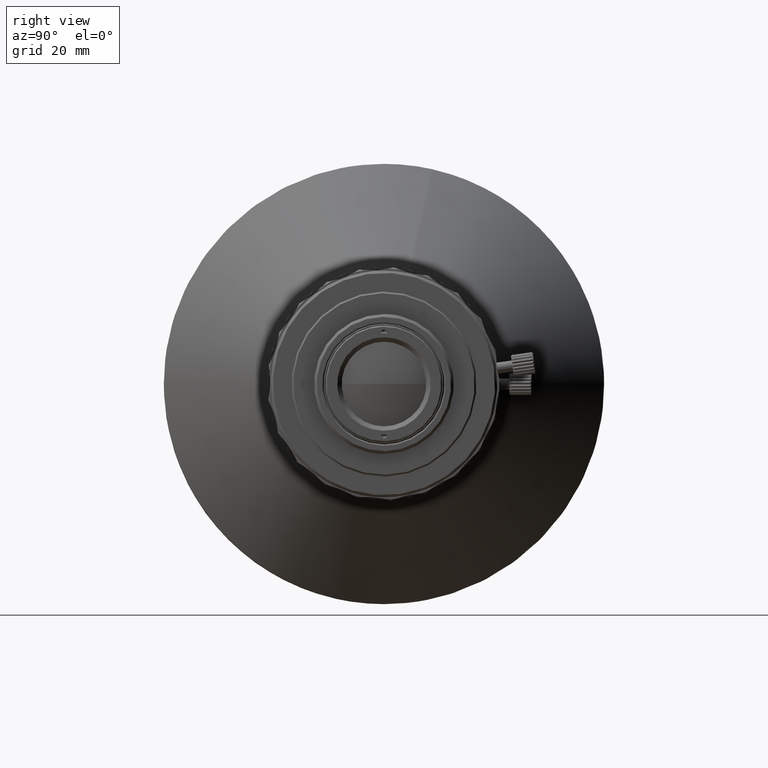
[diagram: clean part render]
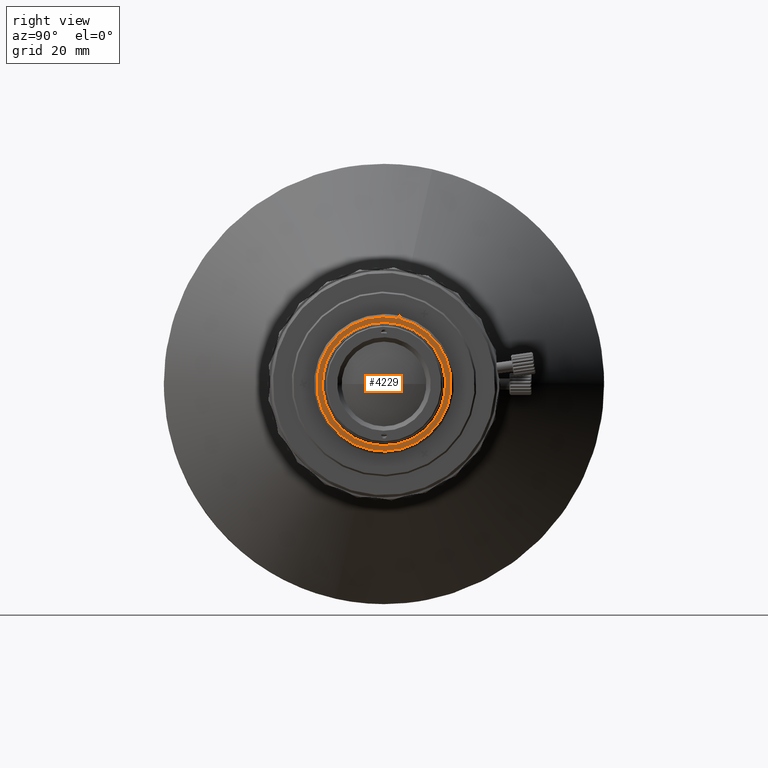
[diagram: same view with one face highlighted and labeled with its STEP entity id]
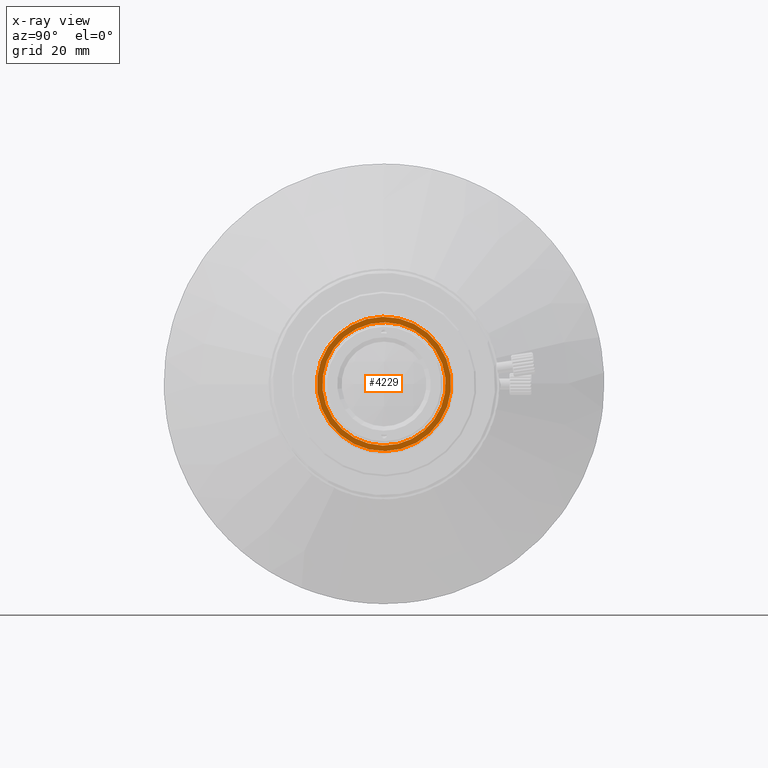
[diagram: x-ray of the same camera — body ghosted, the highlighted face saturated]
A machine part, right view. The second image highlights one B-rep face of the part: STEP entity #4229.
The next image is the same camera in x-ray: the body ghosted, the highlighted face saturated — about 0% of this face is hidden behind the body in this view.
In plain terms, the highlighted planar face has unit normal (-1, 0, 0).
Its self-contained STEP definition (entity closure, byte-faithful):
#234 = EDGE_CURVE ( 'NONE', #28848, #68252, #14749, .T. ) ;
#4229 = ADVANCED_FACE ( 'NONE', ( #77669, #28644 ), #23926, .F. ) ;
#5521 = ORIENTED_EDGE ( 'NONE', *, *, #67320, .F. ) ;
#5863 = DIRECTION ( 'NONE',  ( 0.000000000000000000, -4.102063698398240057E-10, -1.000000000000000000 ) ) ;
#7244 = CARTESIAN_POINT ( 'NONE',  ( 56.03999999999999915, 2.678048785284703914, 11.90243902331093651 ) ) ;
#7276 = CIRCLE ( 'NONE', #26149, 12.20000000000000107 ) ;
#8581 = VERTEX_POINT ( 'NONE', #7244 ) ;
#10186 = DIRECTION ( 'NONE',  ( 1.000000000000000000, 0.000000000000000000, 0.000000000000000000 ) ) ;
#10605 = AXIS2_PLACEMENT_3D ( 'NONE', #49273, #74364, #32403 ) ;
#14749 = CIRCLE ( 'NONE', #41095, 11.19999999873679997 ) ;
#16469 = CARTESIAN_POINT ( 'NONE',  ( 56.03999999873680338, -7.384472555923720226E-16, -4.440892098500630106E-15 ) ) ;
#16937 = CARTESIAN_POINT ( 'NONE',  ( 56.03999999873680338, -2.458536589492243962, 10.92682926606947902 ) ) ;
#18152 = DIRECTION ( 'NONE',  ( 0.000000000000000000, -2.734710793652469723E-10, 1.000000000000000000 ) ) ;
#18285 = AXIS2_PLACEMENT_3D ( 'NONE', #77013, #47189, #18152 ) ;
#19229 = DIRECTION ( 'NONE',  ( 1.000000000000000000, 7.280150983295449668E-16, -2.986364306743450215E-25 ) ) ;
#20359 = DIRECTION ( 'NONE',  ( -1.000000000000000000, 0.000000000000000000, 0.000000000000000000 ) ) ;
#21252 = CARTESIAN_POINT ( 'NONE',  ( 56.03999999999999915, -2.678048785284661282, -11.90243902331094894 ) ) ;
#23926 = PLANE ( 'NONE',  #50797 ) ;
#24313 = CARTESIAN_POINT ( 'NONE',  ( 56.03999999999999915, -12.34640000000000093, 0.000000000000000000 ) ) ;
#26149 = AXIS2_PLACEMENT_3D ( 'NONE', #54881, #19229, #5863 ) ;
#28644 = FACE_OUTER_BOUND ( 'NONE', #73809, .T. ) ;
#28848 = VERTEX_POINT ( 'NONE', #49522 ) ;
#28909 = ORIENTED_EDGE ( 'NONE', *, *, #234, .F. ) ;
#29554 = CIRCLE ( 'NONE', #18285, 11.19999999873679997 ) ;
#32403 = DIRECTION ( 'NONE',  ( 0.000000000000000000, -4.102063698398240057E-10, -1.000000000000000000 ) ) ;
#36558 = VERTEX_POINT ( 'NONE', #21252 ) ;
#41095 = AXIS2_PLACEMENT_3D ( 'NONE', #16469, #10186, #70590 ) ;
#43514 = DIRECTION ( 'NONE',  ( 0.000000000000000000, 0.000000000000000000, 1.000000000000000000 ) ) ;
#47106 = EDGE_CURVE ( 'NONE', #36558, #8581, #58183, .T. ) ;
#47189 = DIRECTION ( 'NONE',  ( 1.000000000000000000, 0.000000000000000000, 0.000000000000000000 ) ) ;
#49273 = CARTESIAN_POINT ( 'NONE',  ( 56.03999999999999915, -5.943728219540828889E-15, 2.220446049250309925E-15 ) ) ;
#49383 = ORIENTED_EDGE ( 'NONE', *, *, #47106, .T. ) ;
#49522 = CARTESIAN_POINT ( 'NONE',  ( 56.03999999873680338, 2.458536589492808400, -10.92682926606933869 ) ) ;
#50797 = AXIS2_PLACEMENT_3D ( 'NONE', #24313, #20359, #43514 ) ;
#54881 = CARTESIAN_POINT ( 'NONE',  ( 56.03999999999999915, -5.943728219540828889E-15, 2.220446049250309925E-15 ) ) ;
#55320 = ORIENTED_EDGE ( 'NONE', *, *, #73145, .T. ) ;
#58183 = CIRCLE ( 'NONE', #10605, 12.20000000000000107 ) ;
#67320 = EDGE_CURVE ( 'NONE', #68252, #28848, #29554, .T. ) ;
#68252 = VERTEX_POINT ( 'NONE', #16937 ) ;
#70590 = DIRECTION ( 'NONE',  ( 0.000000000000000000, -2.734710793652469723E-10, 1.000000000000000000 ) ) ;
#72430 = EDGE_LOOP ( 'NONE', ( #5521, #28909 ) ) ;
#73145 = EDGE_CURVE ( 'NONE', #8581, #36558, #7276, .T. ) ;
#73809 = EDGE_LOOP ( 'NONE', ( #49383, #55320 ) ) ;
#74364 = DIRECTION ( 'NONE',  ( 1.000000000000000000, 7.280150983295449668E-16, -2.986364306743450215E-25 ) ) ;
#77013 = CARTESIAN_POINT ( 'NONE',  ( 56.03999999873680338, -7.384472555923720226E-16, -4.440892098500630106E-15 ) ) ;
#77669 = FACE_BOUND ( 'NONE', #72430, .T. ) ;